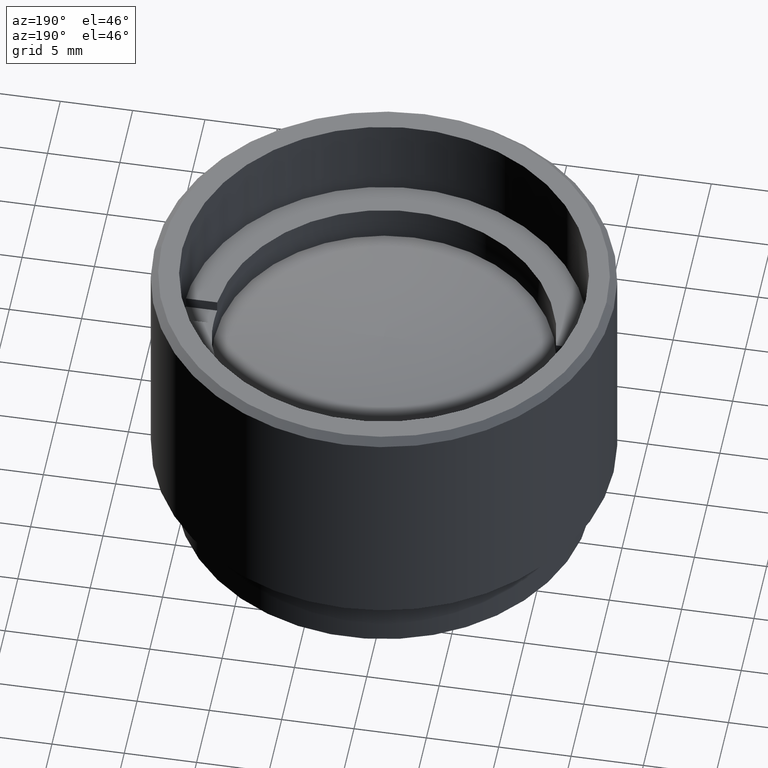
[diagram: clean part render]
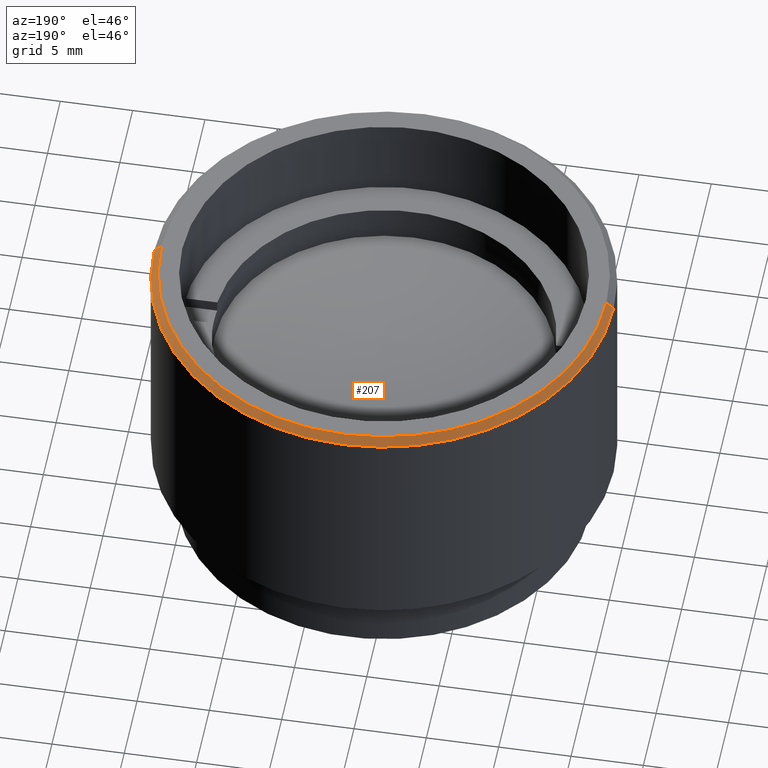
[diagram: same view with one face highlighted and labeled with its STEP entity id]
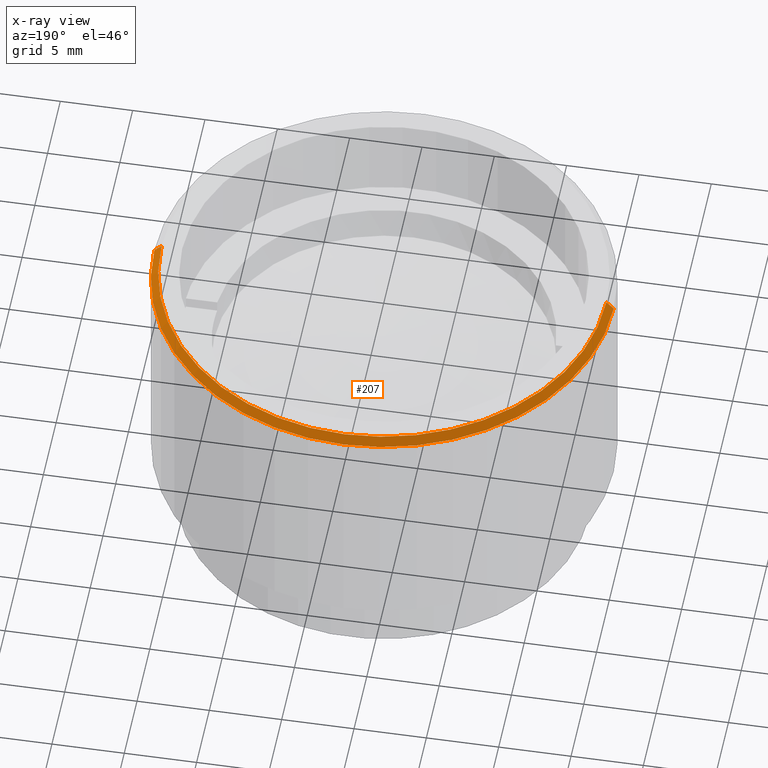
[diagram: x-ray of the same camera — body ghosted, the highlighted face saturated]
A machine part, auxiliary view. The second image highlights one B-rep face of the part: STEP entity #207.
The next image is the same camera in x-ray: the body ghosted, the highlighted face saturated — about 0% of this face is hidden behind the body in this view.
In plain terms, the highlighted conical surface has half-angle 45 deg.
Its self-contained STEP definition (entity closure, byte-faithful):
#32 = ORIENTED_EDGE ( 'NONE', *, *, #1471, .F. ) ;
#116 = LINE ( 'NONE', #427, #486 ) ;
#147 = CARTESIAN_POINT ( 'NONE',  ( 15.87800000000000011, 1.944494187686167431E-15, 20.99999999999999289 ) ) ;
#174 = VECTOR ( 'NONE', #250, 999.9999999999998863 ) ;
#192 = FACE_OUTER_BOUND ( 'NONE', #406, .T. ) ;
#207 = ADVANCED_FACE ( 'NONE', ( #192 ), #762, .T. ) ;
#250 = DIRECTION ( 'NONE',  ( -0.7071067811865376918, 0.000000000000000000, -0.7071067811865574537 ) ) ;
#352 = AXIS2_PLACEMENT_3D ( 'NONE', #496, #378, #1660 ) ;
#378 = DIRECTION ( 'NONE',  ( 0.000000000000000000, 0.000000000000000000, -1.000000000000000000 ) ) ;
#406 = EDGE_LOOP ( 'NONE', ( #682, #1635, #32, #497 ) ) ;
#413 = CIRCLE ( 'NONE', #1686, 15.37800000000000900 ) ;
#427 = CARTESIAN_POINT ( 'NONE',  ( 15.37800000000000900, 1.883261847728801040E-15, 21.50000000000000000 ) ) ;
#473 = DIRECTION ( 'NONE',  ( -1.000000000000000000, 0.000000000000000000, 0.000000000000000000 ) ) ;
#486 = VECTOR ( 'NONE', #1579, 999.9999999999998863 ) ;
#496 = CARTESIAN_POINT ( 'NONE',  ( 0.000000000000000000, 0.000000000000000000, 20.99999999999999289 ) ) ;
#497 = ORIENTED_EDGE ( 'NONE', *, *, #1279, .F. ) ;
#568 = VERTEX_POINT ( 'NONE', #961 ) ;
#682 = ORIENTED_EDGE ( 'NONE', *, *, #1103, .F. ) ;
#724 = CARTESIAN_POINT ( 'NONE',  ( 0.000000000000000000, 0.000000000000000000, 21.50000000000000000 ) ) ;
#762 = CONICAL_SURFACE ( 'NONE', #1644, 15.37800000000000900, 0.7853981633974344012 ) ;
#772 = CARTESIAN_POINT ( 'NONE',  ( -15.87800000000000011, 0.000000000000000000, 20.99999999999999289 ) ) ;
#811 = EDGE_CURVE ( 'NONE', #1018, #1606, #116, .T. ) ;
#940 = DIRECTION ( 'NONE',  ( 0.000000000000000000, 0.000000000000000000, 1.000000000000000000 ) ) ;
#961 = CARTESIAN_POINT ( 'NONE',  ( -15.37800000000000900, 0.000000000000000000, 21.50000000000000000 ) ) ;
#997 = CIRCLE ( 'NONE', #352, 15.87800000000000011 ) ;
#1018 = VERTEX_POINT ( 'NONE', #1098 ) ;
#1098 = CARTESIAN_POINT ( 'NONE',  ( 15.37800000000000900, 1.913878017707484038E-15, 21.50000000000000000 ) ) ;
#1103 = EDGE_CURVE ( 'NONE', #1018, #568, #413, .T. ) ;
#1167 = CARTESIAN_POINT ( 'NONE',  ( -15.37800000000000900, 0.000000000000000000, 21.50000000000000000 ) ) ;
#1237 = DIRECTION ( 'NONE',  ( 1.000000000000000000, 0.000000000000000000, 0.000000000000000000 ) ) ;
#1240 = DIRECTION ( 'NONE',  ( 0.000000000000000000, 0.000000000000000000, -1.000000000000000000 ) ) ;
#1279 = EDGE_CURVE ( 'NONE', #568, #1585, #1426, .T. ) ;
#1351 = CARTESIAN_POINT ( 'NONE',  ( 0.000000000000000000, 0.000000000000000000, 21.50000000000000000 ) ) ;
#1426 = LINE ( 'NONE', #1167, #174 ) ;
#1471 = EDGE_CURVE ( 'NONE', #1585, #1606, #997, .T. ) ;
#1579 = DIRECTION ( 'NONE',  ( 0.7071067811865376918, 8.659560562354813296E-17, -0.7071067811865574537 ) ) ;
#1585 = VERTEX_POINT ( 'NONE', #772 ) ;
#1606 = VERTEX_POINT ( 'NONE', #147 ) ;
#1635 = ORIENTED_EDGE ( 'NONE', *, *, #811, .T. ) ;
#1644 = AXIS2_PLACEMENT_3D ( 'NONE', #724, #1240, #473 ) ;
#1660 = DIRECTION ( 'NONE',  ( 1.000000000000000000, 0.000000000000000000, 0.000000000000000000 ) ) ;
#1686 = AXIS2_PLACEMENT_3D ( 'NONE', #1351, #940, #1237 ) ;